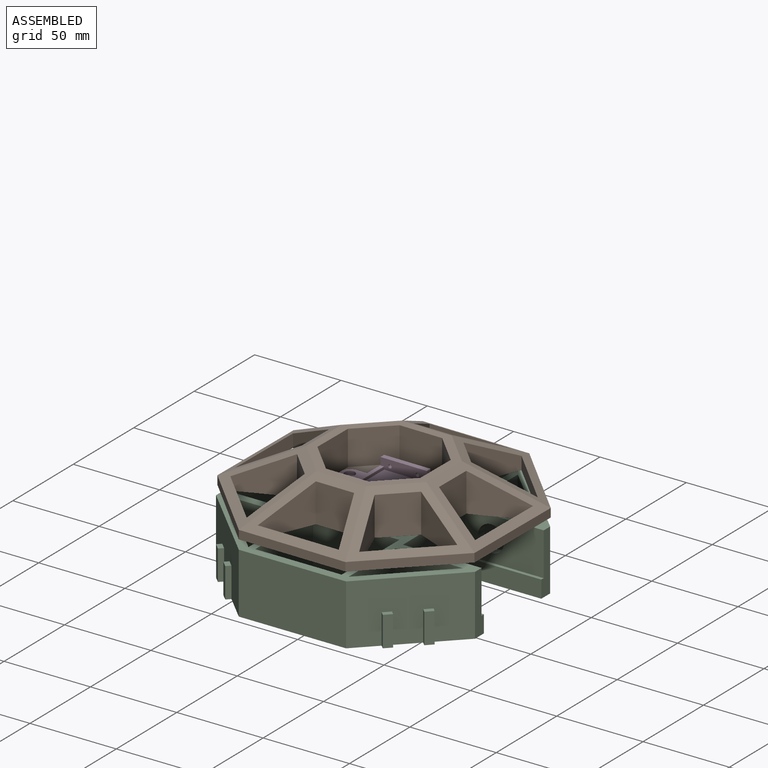
[diagram: assembled view]
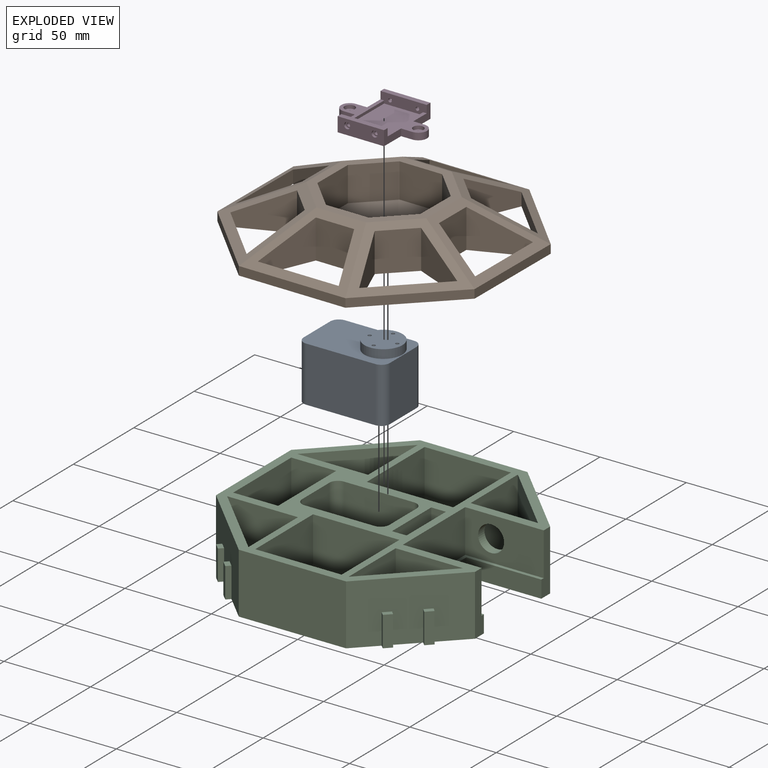
[diagram: exploded view]
GUIDED TOUR — MATED ASSEMBLY (Onshape document 58f457461e77400f81e4b03f, AutoMate assembly 58f457461e77400f81e4b03f_301582b72620d29b9b1326fd_e47ebe4f79f54c8009ae58b3_default)

This assembly has 4 components, labeled P0..P3 below (a component is one placed occurrence of a part; the same part can appear more than once), held together by 6 mates. A mate is a constraint between two components; its type names the relative motion it leaves free:
  CYLINDRICAL — leaves both rotation about and translation along the listed axis free,
  PLANAR — leaves sliding in the plane through the listed point (normal = the listed direction) and rotation about that normal free,
  REVOLUTE — leaves rotation about the listed axis free (a hinge).
Axis/direction vectors are unit vectors and 'through' points are millimeter coordinates, both in the assembly's world frame.

MATES
  1. REVOLUTE "Revolute 1": P1 <-> P0, axis (0.000, 0.000, -1.000) through (-50.34, 0.00, 6.97) mm
  2. PLANAR "Planar 3": P0 <-> P2, direction (0.000, 0.000, -1.000) through (-63.84, 0.00, -30.03) mm
  3. CYLINDRICAL "Cylindrical 1": P1 <-> P3, axis (0.000, 0.000, 1.000) through (-70.07, 0.36, 11.97) mm
  4. PLANAR "Planar 1": P0 <-> P2, direction (1.000, 0.000, 0.000) through (-38.84, 0.00, -14.03) mm
  5. PLANAR "Planar 2": P0 <-> P2, direction (0.000, 1.000, 0.000) through (-63.84, 16.00, -14.03) mm
  6. CYLINDRICAL "Cylindrical 2": P3 <-> P1, axis (0.000, 0.000, -1.000) through (-30.08, -0.04, 11.97) mm

ASSEMBLY ORDER
  1. P2 — the base component [order verified]
  2. P0 [order verified]
  3. P1 [order verified]
  4. P3 [order verified]
Order-tag legend:
  [order verified] — this step's position reverses a verified removal order: the component was checked to insert without passing through the ones already placed.

Of the 4 components, 2 carry the full construction recipe — the FeatureScript program that regenerates the part's solid from scratch; the rest are supplied as boundary geometry only.
Each toured component is shown spotlighted twice — in the assembled view, then in the exploded view, where a leader line traces a displaced component back to its assembled socket (saturated green if recipe-attached, orange if geometry-only; every other component desaturated gray) — followed by its recipe or geometry summary and the mates that hold it.
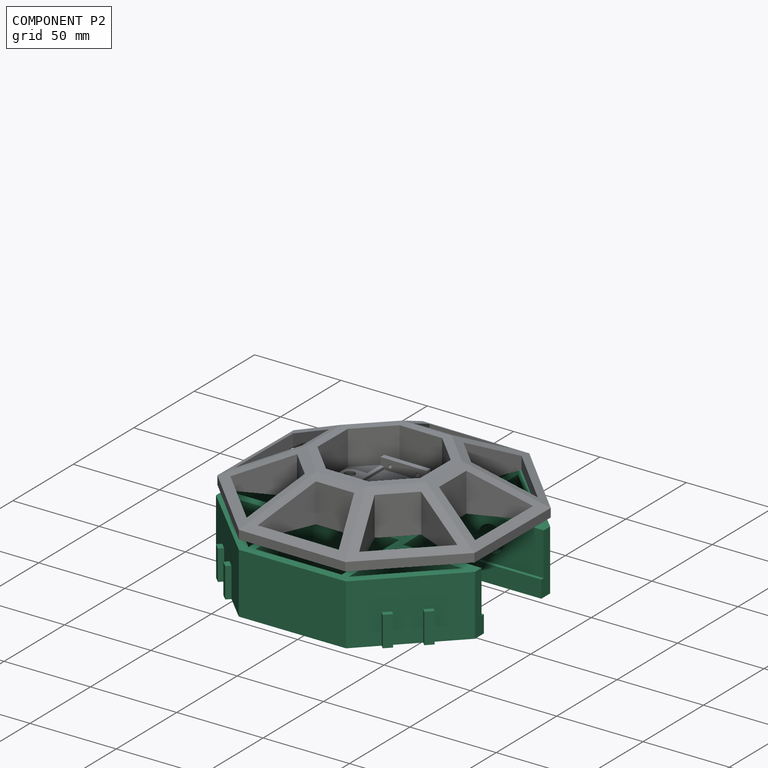
[diagram: component P2 — assembled]
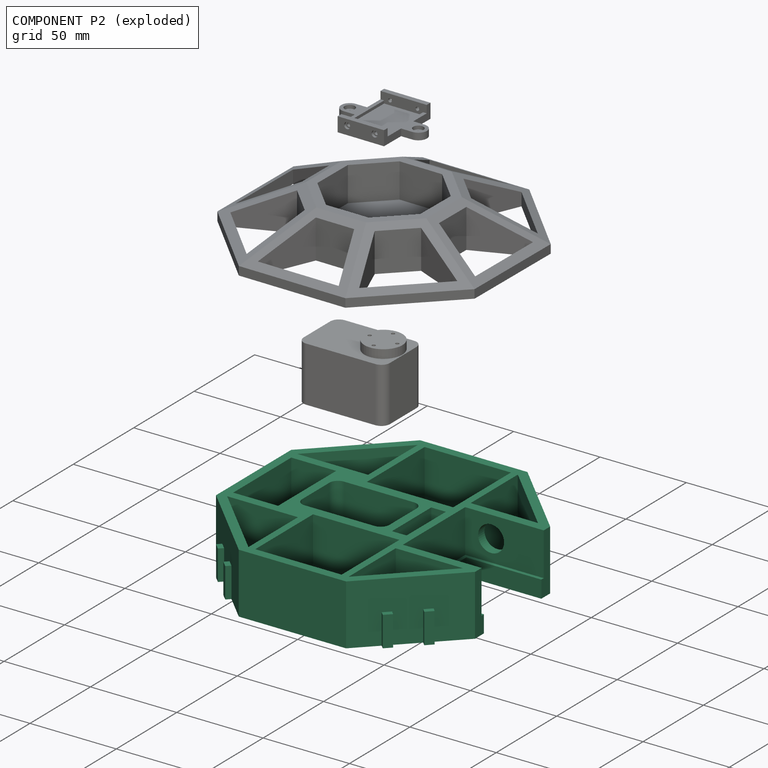
[diagram: component P2 — exploded]
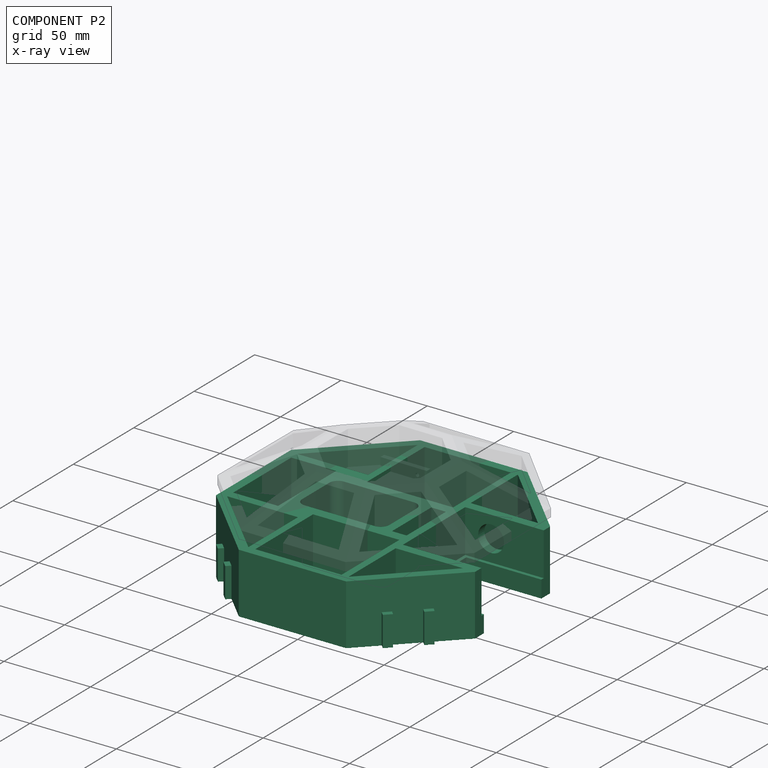
[diagram: component P2 — x-ray view]
COMPONENT P2 — recipe-attached (CADFS 00713573, mesh-verified: the recipe's output STEP matches this component's geometry to below the mesh-comparison resolution (tessellation chordal tolerance ~0.323 mm)).
Held by: PLANAR mate "Planar 3" to P0; PLANAR mate "Planar 1" to P0; PLANAR mate "Planar 2" to P0.
Construction recipe (FeatureScript — the CAD program that rebuilds this solid; sketch coordinates are in the units given by the * unit suffixes, e.g. mm):

FeatureScript 1511;
import(path : "onshape/std/geometry.fs", version : "1511.0");
import(path : "onshape/std/common.fs", version : "1511.0");
const mm = millimeter;
const VERTEX = EntityType.VERTEX;
const EDGE = EntityType.EDGE;
const FACE = EntityType.FACE;
const BODY = EntityType.BODY;
function v(x, y){return vector(x, y);}
function OD(order){return orderDisambiguation(order);}
function OSD(set){return originalSetDisambiguation(set);}
function TD(topology){return topologyDisambiguation(topology);}
function TDD(query){return trueDependencyDisambiguation(query);}
function sQuery(a, b, c) {return sketchEntityQuery(a, b, c);}

annotation { "Feature Type Name" : "Feature", "Feature Type Description" : "" }
export const myFeature = defineFeature(function(context is Context, id is Id, definition is map)
    precondition{}
    {
        {
            var Q0;
            Q0=qCreatedBy(makeId("Top.planeOp"),FACE);
            var sketch = newSketch(context, id + "F0", { "sketchPlane" : qUnion([Q0])});
            skCircle(sketch, "E0.cCircle", {"center": v(0, 0) * mm, "radius": 75 * mm, "construction": true});
            skLineSegment(sketch, "E0.0", {"start": v(75, 31.07) * mm, "end": v(75, -31.07) * mm});
            skLineSegment(sketch, "E0.1", {"start": v(75, -31.07) * mm, "end": v(31.07, -75) * mm});
            skLineSegment(sketch, "E0.2", {"start": v(31.07, -75) * mm, "end": v(-31.07, -75) * mm});
            skLineSegment(sketch, "E0.3", {"start": v(-31.07, -75) * mm, "end": v(-75, -31.07) * mm});
            skLineSegment(sketch, "E0.4", {"start": v(-75, -31.07) * mm, "end": v(-75, 31.07) * mm});
            skLineSegment(sketch, "E0.5", {"start": v(-75, 31.07) * mm, "end": v(-31.07, 75) * mm});
            skLineSegment(sketch, "E0.6", {"start": v(-31.07, 75) * mm, "end": v(31.07, 75) * mm});
            skLineSegment(sketch, "E0.7", {"start": v(31.07, 75) * mm, "end": v(75, 31.07) * mm});
            skPoint(sketch, "E0.0.midPoint", {"position": v(75, 0) * mm});
            skLineSegment(sketch, "E1", {"start": v(0, 0) * mm, "end": v(11.5, 0) * mm, "construction": true});
            skLineSegment(sketch, "E2", {"start": v(11.5, 0) * mm, "end": v(11.5, -16.25) * mm});
            skLineSegment(sketch, "E3", {"start": v(11.5, 0) * mm, "end": v(11.5, 16.25) * mm});
            skLineSegment(sketch, "E4", {"start": v(11.5, 16.25) * mm, "end": v(-39, 16.25) * mm});
            skLineSegment(sketch, "E5", {"start": v(11.5, -16.25) * mm, "end": v(-39, -16.25) * mm});
            skLineSegment(sketch, "E6", {"start": v(-39, 16.25) * mm, "end": v(-39, -16.25) * mm});
            skSolve(sketch);
        }
        {
            var Q0;
            Q0=qSketchRegion(id+"F0",true);
            extrude(context, id + "F1", {"entities" : qUnion([Q0]), "depth" : 35 * mm});
        }
        {
            var Q0;
            Q0=makeQuery(id+"F1.opExtrude","CAP_FACE",FACE,{"disambiguationData":[OSD([sQuery(id+"F0.wireOp",EDGE,"E0.0"),sQuery(id+"F0.wireOp",EDGE,"E0.1"),sQuery(id+"F0.wireOp",EDGE,"E0.2"),sQuery(id+"F0.wireOp",EDGE,"E0.3"),sQuery(id+"F0.wireOp",EDGE,"E0.4"),sQuery(id+"F0.wireOp",EDGE,"E0.5"),sQuery(id+"F0.wireOp",EDGE,"E0.6"),sQuery(id+"F0.wireOp",EDGE,"E0.7"),sQuery(id+"F0.wireOp",EDGE,"E2"),sQuery(id+"F0.wireOp",EDGE,"E3"),sQuery(id+"F0.wireOp",EDGE,"E4"),sQuery(id+"F0.wireOp",EDGE,"E5"),sQuery(id+"F0.wireOp",EDGE,"E6")])],"isStart":true});
            var sketch = newSketch(context, id + "F2", { "sketchPlane" : qUnion([Q0])});
            skLineSegment(sketch, "E7.0", {"start": v(31.07, 75) * mm, "end": v(-31.07, 75) * mm});
            skLineSegment(sketch, "E7.1", {"start": v(-31.07, 75) * mm, "end": v(-75, 31.07) * mm});
            skLineSegment(sketch, "E7.2", {"start": v(-75, 31.07) * mm, "end": v(-75, -31.07) * mm});
            skLineSegment(sketch, "E7.3", {"start": v(-75, -31.07) * mm, "end": v(-31.07, -75) * mm});
            skLineSegment(sketch, "E7.4", {"start": v(-31.07, -75) * mm, "end": v(31.07, -75) * mm});
            skLineSegment(sketch, "E7.5", {"start": v(31.07, -75) * mm, "end": v(75, -31.07) * mm});
            skLineSegment(sketch, "E7.6", {"start": v(75, -31.07) * mm, "end": v(75, 31.07) * mm});
            skLineSegment(sketch, "E7.7", {"start": v(75, 31.07) * mm, "end": v(31.07, 75) * mm});
            skLineSegment(sketch, "E8.0", {"start": v(-29, 70) * mm, "end": v(-70, 29) * mm});
            skLineSegment(sketch, "E8.1", {"start": v(29, 70) * mm, "end": v(-29, 70) * mm, "construction": true});
            skLineSegment(sketch, "E8.2", {"start": v(-70, 29) * mm, "end": v(-70, -29) * mm, "construction": true});
            skLineSegment(sketch, "E8.3", {"start": v(70, 29) * mm, "end": v(68, 31) * mm, "construction": true});
            skLineSegment(sketch, "E8.4", {"start": v(-70, -29) * mm, "end": v(-29, -70) * mm});
            skLineSegment(sketch, "E8.5", {"start": v(-29, -70) * mm, "end": v(29, -70) * mm, "construction": true});
            skLineSegment(sketch, "E8.6", {"start": v(29, -70) * mm, "end": v(68, -31) * mm});
            skLineSegment(sketch, "E8.7", {"start": v(70, -29) * mm, "end": v(70, 29) * mm, "construction": true});
            skLineSegment(sketch, "E9.0", {"start": v(11.5, 16.25) * mm, "end": v(-39, 16.25) * mm, "construction": true});
            skLineSegment(sketch, "E9.1", {"start": v(-39, -16.25) * mm, "end": v(-39, 16.25) * mm, "construction": true});
            skLineSegment(sketch, "E9.2", {"start": v(11.5, -16.25) * mm, "end": v(-39, -16.25) * mm, "construction": true});
            skLineSegment(sketch, "E9.3", {"start": v(11.5, 16.25) * mm, "end": v(11.5, -16.25) * mm, "construction": true});
            skLineSegment(sketch, "E10", {"start": v(-70, 29) * mm, "end": v(-29, 29) * mm});
            skLineSegment(sketch, "E11", {"start": v(-29, 70) * mm, "end": v(-29, 29) * mm});
            skLineSegment(sketch, "E12", {"start": v(29, 70) * mm, "end": v(29, 31) * mm});
            skLineSegment(sketch, "E13", {"start": v(29, 29) * mm, "end": v(70, 29) * mm, "construction": true});
            skLineSegment(sketch, "E14", {"start": v(70, -29) * mm, "end": v(29, -29) * mm, "construction": true});
            skLineSegment(sketch, "E15", {"start": v(29, -29) * mm, "end": v(29, -31) * mm, "construction": true});
            skLineSegment(sketch, "E16", {"start": v(-29, -70) * mm, "end": v(-29, -29) * mm});
            skLineSegment(sketch, "E17", {"start": v(-29, -29) * mm, "end": v(-70, -29) * mm});
            skLineSegment(sketch, "E18", {"start": v(-25, 70) * mm, "end": v(25, 70) * mm});
            skLineSegment(sketch, "E19", {"start": v(0, 0) * mm, "end": v(27.89, 0) * mm, "construction": true});
            skPoint(sketch, "E19.endSnap0", {"position": v(11.5, 0) * mm});
            skLineSegment(sketch, "E20.MirrorCS", {"start": v(-25, -70) * mm, "end": v(25, -70) * mm});
            skLineSegment(sketch, "E21", {"start": v(-44, 24) * mm, "end": v(-44, -24) * mm});
            skLineSegment(sketch, "E22.0", {"start": v(68, -31) * mm, "end": v(29, -31) * mm});
            skLineSegment(sketch, "E23", {"start": v(29, -31) * mm, "end": v(29, -70) * mm});
            skLineSegment(sketch, "E24", {"start": v(68, -31) * mm, "end": v(70, -29) * mm, "construction": true});
            skLineSegment(sketch, "E25.0", {"start": v(29, 31) * mm, "end": v(68, 31) * mm});
            skLineSegment(sketch, "E26", {"start": v(29, 31) * mm, "end": v(29, 29) * mm, "construction": true});
            skLineSegment(sketch, "E27", {"start": v(68, 31) * mm, "end": v(29, 70) * mm});
            skLineSegment(sketch, "E28", {"start": v(-44, 24) * mm, "end": v(-70, 24) * mm});
            skLineSegment(sketch, "E29", {"start": v(-44, -24) * mm, "end": v(-70, -24) * mm});
            skLineSegment(sketch, "E30", {"start": v(-70, -24) * mm, "end": v(-70, 24) * mm});
            skLineSegment(sketch, "E31", {"start": v(-25, 22.25) * mm, "end": v(24.98, 22.25) * mm});
            skLineSegment(sketch, "E32", {"start": v(-25, -22.25) * mm, "end": v(25, -22.25) * mm});
            skLineSegment(sketch, "E33", {"start": v(-25, -22.25) * mm, "end": v(-25, -70) * mm});
            skLineSegment(sketch, "E34", {"start": v(25, -22.25) * mm, "end": v(25, -70) * mm});
            skLineSegment(sketch, "E35", {"start": v(24.98, 22.25) * mm, "end": v(25, 70) * mm});
            skLineSegment(sketch, "E36", {"start": v(-25, 22.25) * mm, "end": v(-25, 70) * mm});
            skLineSegment(sketch, "E37", {"start": v(16.5, 16.25) * mm, "end": v(16.5, -16.25) * mm});
            skLineSegment(sketch, "E38", {"start": v(16.5, 16.25) * mm, "end": v(24.98, 16.25) * mm});
            skLineSegment(sketch, "E39", {"start": v(24.98, 16.25) * mm, "end": v(24.98, -16.25) * mm});
            skLineSegment(sketch, "E40", {"start": v(24.98, -16.25) * mm, "end": v(16.5, -16.25) * mm});
            skSolve(sketch);
        }
        {
            var Q0;
            Q0=makeQuery(id+"F2.imprint","IMPRINT",FACE,{"disambiguationData":[TD([[makeQuery(id+"F2.imprint","IMPRINT",EDGE,{"derivedFrom":sQuery(id+"F2.wireOp",EDGE,"E8.0")}),1.0]])]});
            var Q1;
            Q1=makeQuery(id+"F2.imprint","IMPRINT",FACE,{"disambiguationData":[TD([[makeQuery(id+"F2.imprint","IMPRINT",EDGE,{"derivedFrom":sQuery(id+"F2.wireOp",EDGE,"E8.3")}),1.0]])]});
            var Q2;
            Q2=makeQuery(id+"F2.imprint","IMPRINT",FACE,{"disambiguationData":[TD([[makeQuery(id+"F2.imprint","IMPRINT",EDGE,{"derivedFrom":sQuery(id+"F2.wireOp",EDGE,"E8.4")}),1.0]])]});
            var Q3;
            Q3=makeQuery(id+"F2.imprint","IMPRINT",FACE,{"disambiguationData":[TD([[makeQuery(id+"F2.imprint","IMPRINT",EDGE,{"derivedFrom":sQuery(id+"F2.wireOp",EDGE,"8fvEKYef-Aid4-GxJZ-9eho-uKyJXPdf4iPF")}),1.0]])]});
            var Q4;
            Q4=makeQuery(id+"F2.imprint","IMPRINT",FACE,{"disambiguationData":[TD([[makeQuery(id+"F2.imprint","IMPRINT",EDGE,{"derivedFrom":sQuery(id+"F2.wireOp",EDGE,"9003354b-389c-4ee3-9b45-5ecd4443ff8f0.MirrorCS")}),-1.0]])]});
            var Q5;
            Q5=makeQuery(id+"F2.imprint","IMPRINT",FACE,{"disambiguationData":[TD([[makeQuery(id+"F2.imprint","IMPRINT",EDGE,{"derivedFrom":sQuery(id+"F2.wireOp",EDGE,"X22rCwxT-IPlS-Nedg-AixG-TADrHZbppUWM")}),-1.0]])]});
            var Q6;
            Q6=makeQuery(id+"F2.imprint","IMPRINT",FACE,{"disambiguationData":[TD([[makeQuery(id+"F2.imprint","IMPRINT",EDGE,{"derivedFrom":sQuery(id+"F2.wireOp",EDGE,"E12")}),1.0]])]});
            var Q7;
            Q7=makeQuery(id+"F2.imprint","IMPRINT",FACE,{"disambiguationData":[TD([[makeQuery(id+"F2.imprint","IMPRINT",EDGE,{"derivedFrom":sQuery(id+"F2.wireOp",EDGE,"E8.6")}),1.0]])]});
            var Q8;
            Q8=makeQuery(id+"F2.imprint","IMPRINT",FACE,{"disambiguationData":[TD([[makeQuery(id+"F2.imprint","IMPRINT",EDGE,{"derivedFrom":sQuery(id+"F2.wireOp",EDGE,"E21")}),-1.0]])]});
            var Q9;
            Q9=makeQuery(id+"F2.imprint","IMPRINT",FACE,{"disambiguationData":[TD([[makeQuery(id+"F2.imprint","IMPRINT",EDGE,{"derivedFrom":sQuery(id+"F2.wireOp",EDGE,"E18")}),-1.0]])]});
            var Q10;
            Q10=makeQuery(id+"F2.imprint","IMPRINT",FACE,{"disambiguationData":[TD([[makeQuery(id+"F2.imprint","IMPRINT",EDGE,{"derivedFrom":sQuery(id+"F2.wireOp",EDGE,"E20.MirrorCS")}),1.0]])]});
            var Q11;
            Q11=makeQuery(id+"F2.imprint","IMPRINT",FACE,{"disambiguationData":[TD([[makeQuery(id+"F2.imprint","IMPRINT",EDGE,{"derivedFrom":sQuery(id+"F2.wireOp",EDGE,"E37")}),1.0]])]});
            extrude(context, id + "F3", {"entities" : qUnion([Q0, Q1, Q2, Q3, Q4, Q5, Q6, Q7, Q8, Q9, Q10, Q11]), "operationType" : NewBodyOperationType.REMOVE, "oppositeDirection" : true, "depth" : 36.9 * mm});
        }
        {
            var Q0;
            Q0=makeQuery(id+"F1.opExtrude","CAP_FACE",FACE,{"disambiguationData":[OSD([sQuery(id+"F0.wireOp",EDGE,"E0.0"),sQuery(id+"F0.wireOp",EDGE,"E0.1"),sQuery(id+"F0.wireOp",EDGE,"E0.2"),sQuery(id+"F0.wireOp",EDGE,"E0.3"),sQuery(id+"F0.wireOp",EDGE,"E0.4"),sQuery(id+"F0.wireOp",EDGE,"E0.5"),sQuery(id+"F0.wireOp",EDGE,"E0.6"),sQuery(id+"F0.wireOp",EDGE,"E0.7"),sQuery(id+"F0.wireOp",EDGE,"E2"),sQuery(id+"F0.wireOp",EDGE,"E3"),sQuery(id+"F0.wireOp",EDGE,"E4"),sQuery(id+"F0.wireOp",EDGE,"E5"),sQuery(id+"F0.wireOp",EDGE,"E6")])],"isStart":true});
            var sketch = newSketch(context, id + "F4", { "sketchPlane" : qUnion([Q0])});
            skLineSegment(sketch, "E41.0", {"start": v(-39, -16.25) * mm, "end": v(-39, 16.25) * mm});
            skLineSegment(sketch, "E41.1", {"start": v(11.5, 16.25) * mm, "end": v(-39, 16.25) * mm});
            skLineSegment(sketch, "E41.2", {"start": v(11.5, -16.25) * mm, "end": v(-39, -16.25) * mm});
            skLineSegment(sketch, "E41.3", {"start": v(11.5, 16.25) * mm, "end": v(11.5, -16.25) * mm});
            skLineSegment(sketch, "E42.0", {"start": v(9, -11.25) * mm, "end": v(-34, -11.25) * mm});
            skLineSegment(sketch, "E42.1", {"start": v(-34, -11.25) * mm, "end": v(-34, 11.25) * mm});
            skLineSegment(sketch, "E42.2", {"start": v(9, 11.25) * mm, "end": v(-34, 11.25) * mm});
            skLineSegment(sketch, "E43", {"start": v(-39, 13.75) * mm, "end": v(-30.5, 13.75) * mm, "construction": true});
            skLineSegment(sketch, "E44", {"start": v(-30.5, 13.75) * mm, "end": v(-22.5, 13.75) * mm, "construction": true});
            skLineSegment(sketch, "E45", {"start": v(-22.5, 13.75) * mm, "end": v(-14.5, 13.75) * mm, "construction": true});
            skLineSegment(sketch, "E46", {"start": v(-14.5, 13.75) * mm, "end": v(-6.5, 13.75) * mm, "construction": true});
            skCircle(sketch, "E47", {"center": v(-30.5, 13.75) * mm, "radius": 1 * mm});
            skCircle(sketch, "E48", {"center": v(-22.5, 13.75) * mm, "radius": 1 * mm});
            skCircle(sketch, "E49", {"center": v(-14.5, 13.75) * mm, "radius": 1 * mm});
            skCircle(sketch, "E50", {"center": v(-6.5, 13.75) * mm, "radius": 1 * mm});
            skLineSegment(sketch, "E51", {"start": v(-39, 0) * mm, "end": v(-36, 0) * mm, "construction": true});
            skPoint(sketch, "E51.endSnap0", {"position": v(-39, 0) * mm});
            skLineSegment(sketch, "E52", {"start": v(-36, 0) * mm, "end": v(-36, 8) * mm, "construction": true});
            skLineSegment(sketch, "E53", {"start": v(-36, 0) * mm, "end": v(-36, -8) * mm, "construction": true});
            skLineSegment(sketch, "E54.MirrorCS", {"start": v(-39, -13.75) * mm, "end": v(-30.5, -13.75) * mm, "construction": true});
            skLineSegment(sketch, "E55.MirrorCS", {"start": v(-14.5, -13.75) * mm, "end": v(-6.5, -13.75) * mm, "construction": true});
            skCircle(sketch, "E56.MirrorC", {"center": v(-22.5, -13.75) * mm, "radius": 1 * mm});
            skCircle(sketch, "E57.MirrorC", {"center": v(-6.5, -13.75) * mm, "radius": 1 * mm});
            skCircle(sketch, "E58.MirrorC", {"center": v(-30.5, -13.75) * mm, "radius": 1 * mm});
            skLineSegment(sketch, "E59.MirrorCS", {"start": v(-30.5, -13.75) * mm, "end": v(-22.5, -13.75) * mm, "construction": true});
            skLineSegment(sketch, "E60.MirrorCS", {"start": v(-22.5, -13.75) * mm, "end": v(-14.5, -13.75) * mm, "construction": true});
            skCircle(sketch, "E61.MirrorC", {"center": v(-14.5, -13.75) * mm, "radius": 1 * mm});
            skCircle(sketch, "E62", {"center": v(-36, 8) * mm, "radius": 1 * mm});
            skCircle(sketch, "E63", {"center": v(-36, -8) * mm, "radius": 1 * mm});
            skLineSegment(sketch, "E64.0", {"start": v(9, 11.25) * mm, "end": v(9, -11.25) * mm});
            skSolve(sketch);
        }
        {
            var Q0;
            Q0=makeQuery(id+"F4.imprint","IMPRINT",FACE,{"disambiguationData":[TD([[makeQuery(id+"F4.imprint","IMPRINT",EDGE,{"derivedFrom":sQuery(id+"F4.wireOp",EDGE,"E41.0")}),-1.0]])]});
            extrude(context, id + "F5", {"entities" : qUnion([Q0]), "operationType" : NewBodyOperationType.ADD, "oppositeDirection" : true, "depth" : 3 * mm});
        }
        {
            var Q0;
            Q0=makeQuery(id+"F1.opExtrude","SWEPT_EDGE",EDGE,{"disambiguationData":[OSD([sQuery(id+"F0.wireOp",EDGE,"E5"),sQuery(id+"F0.wireOp",EDGE,"E6")])]});
            var Q1;
            Q1=makeQuery(id+"F1.opExtrude","SWEPT_EDGE",EDGE,{"disambiguationData":[OSD([sQuery(id+"F0.wireOp",EDGE,"E4"),sQuery(id+"F0.wireOp",EDGE,"E6")])]});
            var Q2;
            Q2=makeQuery(id+"F1.opExtrude","SWEPT_EDGE",EDGE,{"disambiguationData":[OSD([sQuery(id+"F0.wireOp",EDGE,"E3"),sQuery(id+"F0.wireOp",EDGE,"E4")])]});
            var Q3;
            Q3=makeQuery(id+"F1.opExtrude","SWEPT_EDGE",EDGE,{"disambiguationData":[OSD([sQuery(id+"F0.wireOp",EDGE,"E2"),sQuery(id+"F0.wireOp",EDGE,"E5")])]});
            fillet(context, id + "F6", {"entities" : qUnion([Q0, Q1, Q2, Q3]), "radius" : 5 * mm, "tangentPropagation" : true, "allowEdgeOverflow" : false});
        }
        {
            var Q0;
            Q0=makeQuery(id+"F1.opExtrude","CAP_FACE",FACE,{"disambiguationData":[OSD([sQuery(id+"F0.wireOp",EDGE,"E0.0"),sQuery(id+"F0.wireOp",EDGE,"E0.1"),sQuery(id+"F0.wireOp",EDGE,"E0.2"),sQuery(id+"F0.wireOp",EDGE,"E0.3"),sQuery(id+"F0.wireOp",EDGE,"E0.4"),sQuery(id+"F0.wireOp",EDGE,"E0.5"),sQuery(id+"F0.wireOp",EDGE,"E0.6"),sQuery(id+"F0.wireOp",EDGE,"E0.7"),sQuery(id+"F0.wireOp",EDGE,"E2"),sQuery(id+"F0.wireOp",EDGE,"E3"),sQuery(id+"F0.wireOp",EDGE,"E4"),sQuery(id+"F0.wireOp",EDGE,"E5"),sQuery(id+"F0.wireOp",EDGE,"E6")])],"isStart":false});
            var sketch = newSketch(context, id + "F7", { "sketchPlane" : qUnion([Q0])});
            skLineSegment(sketch, "E65.bottom", {"start": v(75, -25.75) * mm, "end": v(29.5, -25.75) * mm});
            skLineSegment(sketch, "E65.top", {"start": v(75, 25.75) * mm, "end": v(29.5, 25.75) * mm});
            skLineSegment(sketch, "E65.right", {"start": v(29.5, -25.75) * mm, "end": v(29.5, 25.75) * mm});
            skPoint(sketch, "E65.middle", {"position": v(52.25, 0) * mm});
            skPoint(sketch, "E66", {"position": v(75, 0) * mm});
            skLineSegment(sketch, "E67", {"start": v(75, 0) * mm, "end": v(52.25, 0) * mm, "construction": true});
            skSolve(sketch);
        }
        {
            var Q0;
            {var subQ0=sQuery(id+"F7.wireOp",EDGE,"E65.bottom");Q0=makeQuery(id+"F7.imprint","IMPRINT",FACE,{"disambiguationData":[TD([[makeQuery(id+"F7.imprint","IMPRINT",EDGE,{"derivedFrom":subQ0}),-1.0]])]});}
            extrude(context, id + "F8", {"entities" : qUnion([Q0]), "operationType" : NewBodyOperationType.REMOVE, "oppositeDirection" : true, "depth" : 30 * mm});
        }
        {
            var Q0;
            Q0=makeQuery(id+"F8.boolean.opBoolean","COPY",FACE,{"derivedFrom":makeQuery(id+"F8.opExtrude","CAP_FACE",FACE,{"disambiguationData":[OSD([sQuery(id+"F0.wireOp",EDGE,"E0.0"),sQuery(id+"F7.wireOp",EDGE,"E65.bottom"),sQuery(id+"F7.wireOp",EDGE,"E65.top"),sQuery(id+"F7.wireOp",EDGE,"E65.right")])],"isStart":false})});
            var sketch = newSketch(context, id + "F9", { "sketchPlane" : qUnion([Q0])});
            skLineSegment(sketch, "E68.0", {"start": v(75, 25.75) * mm, "end": v(29.5, 25.75) * mm});
            skLineSegment(sketch, "E68.1", {"start": v(29.5, -25.75) * mm, "end": v(29.5, 25.75) * mm});
            skLineSegment(sketch, "E68.2", {"start": v(75, -25.75) * mm, "end": v(29.5, -25.75) * mm});
            skLineSegment(sketch, "E69.0", {"start": v(75, -23.75) * mm, "end": v(31.5, -23.75) * mm});
            skLineSegment(sketch, "E69.1", {"start": v(31.5, -23.75) * mm, "end": v(31.5, 23.75) * mm});
            skLineSegment(sketch, "E69.2", {"start": v(75, 23.75) * mm, "end": v(31.5, 23.75) * mm});
            skLineSegment(sketch, "E70", {"start": v(75, 23.75) * mm, "end": v(75, 25.75) * mm});
            skLineSegment(sketch, "E71", {"start": v(75, -23.75) * mm, "end": v(75, -25.75) * mm});
            skSolve(sketch);
        }
        {
            var Q0;
            Q0=makeQuery(id+"F9.imprint","IMPRINT",FACE,{"disambiguationData":[TD([[makeQuery(id+"F9.imprint","IMPRINT",EDGE,{"derivedFrom":sQuery(id+"F9.wireOp",EDGE,"E68.0")}),1.0]])]});
            extrude(context, id + "F10", {"entities" : qUnion([Q0]), "operationType" : NewBodyOperationType.ADD, "depth" : 5 * mm});
        }
        {
            var Q0;
            Q0=makeQuery(id+"F8.boolean.opBoolean","COPY",FACE,{"derivedFrom":makeQuery(id+"F8.opExtrude","SWEPT_FACE",FACE,{"disambiguationData":[OSD([sQuery(id+"F7.wireOp",EDGE,"E65.bottom")])]})});
            var sketch = newSketch(context, id + "F11", { "sketchPlane" : qUnion([Q0])});
            skLineSegment(sketch, "E72.0", {"start": v(-68, 35) * mm, "end": v(-68, 0) * mm, "construction": true});
            skLineSegment(sketch, "E73", {"start": v(-55, 10) * mm, "end": v(-55, 25) * mm});
            skLineSegment(sketch, "E74", {"start": v(-55, 25) * mm, "end": v(-35, 25) * mm});
            skLineSegment(sketch, "E75", {"start": v(-35, 25) * mm, "end": v(-35, 10) * mm});
            skLineSegment(sketch, "E76", {"start": v(-35, 10) * mm, "end": v(-55, 10) * mm});
            skSolve(sketch);
        }
        {
            var Q0;
            Q0=makeQuery(id+"F11.imprint","IMPRINT",FACE,{"disambiguationData":[TD([[makeQuery(id+"F11.imprint","IMPRINT",EDGE,{"derivedFrom":sQuery(id+"F11.wireOp",EDGE,"E73")}),-1.0]])]});
            extrude(context, id + "F12", {"entities" : qUnion([Q0]), "operationType" : NewBodyOperationType.REMOVE, "oppositeDirection" : true, "depth" : 11.4 * mm});
        }
        {
            var Q0;
            Q0=makeQuery(id+"F12.boolean.opBoolean","COPY",EDGE,{"derivedFrom":makeQuery(id+"F12.opExtrude","SWEPT_EDGE",EDGE,{"disambiguationData":[OSD([sQuery(id+"F11.wireOp",EDGE,"E73"),sQuery(id+"F11.wireOp",EDGE,"E74")])]})});
            var Q1;
            Q1=makeQuery(id+"F12.boolean.opBoolean","COPY",EDGE,{"derivedFrom":makeQuery(id+"F12.opExtrude","SWEPT_EDGE",EDGE,{"disambiguationData":[OSD([sQuery(id+"F11.wireOp",EDGE,"E74"),sQuery(id+"F11.wireOp",EDGE,"E75")])]})});
            fillet(context, id + "F13", {"entities" : qUnion([Q0, Q1]), "radius" : 10 * mm, "tangentPropagation" : true, "allowEdgeOverflow" : false});
        }
        {
            var Q0;
            Q0=makeQuery(id+"F12.boolean.opBoolean","MERGE",FACE,{"derivedFrom":[makeQuery(id+"F10.opExtrude","CAP_FACE",FACE,{"disambiguationData":[OSD([sQuery(id+"F9.wireOp",EDGE,"E68.0"),sQuery(id+"F9.wireOp",EDGE,"E68.1"),sQuery(id+"F9.wireOp",EDGE,"E68.2"),sQuery(id+"F9.wireOp",EDGE,"E69.0"),sQuery(id+"F9.wireOp",EDGE,"E69.1"),sQuery(id+"F9.wireOp",EDGE,"E69.2"),sQuery(id+"F9.wireOp",EDGE,"E70"),sQuery(id+"F9.wireOp",EDGE,"E71")])],"isStart":false}),makeQuery(id+"F12.opExtrude","SWEPT_FACE",FACE,{"disambiguationData":[OSD([sQuery(id+"F11.wireOp",EDGE,"E76")])]})]});
            var sketch = newSketch(context, id + "F14", { "sketchPlane" : qUnion([Q0])});
            skLineSegment(sketch, "E77", {"start": v(35, -31) * mm, "end": v(35, -25.75) * mm});
            skLineSegment(sketch, "E78", {"start": v(35, -25.75) * mm, "end": v(55, -25.75) * mm});
            skLineSegment(sketch, "E79", {"start": v(55, -25.75) * mm, "end": v(55, -31) * mm});
            skLineSegment(sketch, "E80", {"start": v(55, -31) * mm, "end": v(35, -31) * mm});
            skSolve(sketch);
        }
        {
            var Q0;
            Q0=makeQuery(id+"F14.imprint","IMPRINT",FACE,{"disambiguationData":[TD([[makeQuery(id+"F14.imprint","IMPRINT",EDGE,{"derivedFrom":sQuery(id+"F14.wireOp",EDGE,"E77")}),-1.0]])]});
            extrude(context, id + "F15", {"entities" : qUnion([Q0]), "operationType" : NewBodyOperationType.REMOVE, "oppositeDirection" : true, "depth" : 25 * mm});
        }
        {
            var Q0;
            Q0=makeQuery(id+"F8.boolean.opBoolean","COPY",FACE,{"derivedFrom":makeQuery(id+"F8.opExtrude","SWEPT_FACE",FACE,{"disambiguationData":[OSD([sQuery(id+"F7.wireOp",EDGE,"E65.top")])]})});
            var sketch = newSketch(context, id + "F16", { "sketchPlane" : qUnion([Q0])});
            skLineSegment(sketch, "E81", {"start": v(29.5, 22.5) * mm, "end": v(44.5, 22.5) * mm, "construction": true});
            skCircle(sketch, "E82", {"center": v(44.5, 22.5) * mm, "radius": 7.5 * mm});
            skSolve(sketch);
        }
        {
            var Q0;
            Q0=makeQuery(id+"F16.imprint","IMPRINT",FACE,{"disambiguationData":[TD([[makeQuery(id+"F16.imprint","IMPRINT",EDGE,{"derivedFrom":sQuery(id+"F16.wireOp",EDGE,"E82")}),1.0]])]});
            extrude(context, id + "F17", {"entities" : qUnion([Q0]), "operationType" : NewBodyOperationType.REMOVE, "oppositeDirection" : true, "depth" : 7.7 * mm});
        }
        {
            var Q0;
            Q0=makeQuery(id+"F8.boolean.opBoolean","COPY",FACE,{"derivedFrom":makeQuery(id+"F8.opExtrude","CAP_FACE",FACE,{"disambiguationData":[OSD([sQuery(id+"F0.wireOp",EDGE,"E0.0"),sQuery(id+"F7.wireOp",EDGE,"E65.bottom"),sQuery(id+"F7.wireOp",EDGE,"E65.top"),sQuery(id+"F7.wireOp",EDGE,"E65.right")])],"isStart":false})});
            extrude(context, id + "F18", {"entities" : qUnion([Q0]), "operationType" : NewBodyOperationType.REMOVE, "oppositeDirection" : true, "depth" : 25 * mm});
        }
        {
            var Q0;
            Q0=qCreatedBy(makeId("Top.planeOp"),FACE);
            var sketch = newSketch(context, id + "F19", { "sketchPlane" : qUnion([Q0])});
            skPoint(sketch, "E83.0", {"position": v(48.5, -50.5) * mm});
            skLineSegment(sketch, "E84.0", {"start": v(68, -31) * mm, "end": v(29, -70) * mm, "construction": true});
            skLineSegment(sketch, "E85", {"start": v(43.2, -55.8) * mm, "end": v(41.07, -53.68) * mm});
            skLineSegment(sketch, "E86", {"start": v(52.03, -46.96) * mm, "end": v(49.91, -44.84) * mm});
            skLineSegment(sketch, "E87", {"start": v(41.07, -53.68) * mm, "end": v(37.54, -57.21) * mm});
            skLineSegment(sketch, "E88", {"start": v(37.54, -57.21) * mm, "end": v(39.66, -59.34) * mm});
            skLineSegment(sketch, "E89", {"start": v(49.91, -44.84) * mm, "end": v(55.21, -39.54) * mm});
            skLineSegment(sketch, "E90", {"start": v(55.21, -39.54) * mm, "end": v(57.34, -41.66) * mm});
            skLineSegment(sketch, "E91", {"start": v(48.5, -50.5) * mm, "end": v(52.03, -54.03) * mm, "construction": true});
            skLineSegment(sketch, "E92.0", {"start": v(75, -31.07) * mm, "end": v(31.07, -75) * mm, "construction": true});
            skLineSegment(sketch, "E93", {"start": v(43.2, -55.8) * mm, "end": v(39.66, -59.34) * mm});
            skLineSegment(sketch, "E94", {"start": v(52.03, -46.96) * mm, "end": v(57.34, -41.66) * mm});
            skLineSegment(sketch, "E95", {"start": v(46.73, -59.34) * mm, "end": v(48.85, -61.46) * mm});
            skLineSegment(sketch, "E96", {"start": v(48.85, -61.46) * mm, "end": v(45.32, -65) * mm});
            skLineSegment(sketch, "E97", {"start": v(45.32, -65) * mm, "end": v(43.2, -62.87) * mm});
            skLineSegment(sketch, "E98", {"start": v(43.2, -62.87) * mm, "end": v(46.73, -59.34) * mm});
            skLineSegment(sketch, "E99", {"start": v(57.34, -48.73) * mm, "end": v(59.46, -50.85) * mm});
            skLineSegment(sketch, "E100", {"start": v(59.46, -50.85) * mm, "end": v(63, -47.32) * mm});
            skLineSegment(sketch, "E101", {"start": v(63, -47.32) * mm, "end": v(60.87, -45.2) * mm});
            skLineSegment(sketch, "E102", {"start": v(60.87, -45.2) * mm, "end": v(57.34, -48.73) * mm});
            skLineSegment(sketch, "E103.1.0", {"start": v(50.85, 59.46) * mm, "end": v(47.32, 63) * mm});
            skLineSegment(sketch, "E103.1.1", {"start": v(48.73, 57.34) * mm, "end": v(50.85, 59.46) * mm});
            skLineSegment(sketch, "E103.1.2", {"start": v(45.2, 60.87) * mm, "end": v(48.73, 57.34) * mm});
            skLineSegment(sketch, "E103.1.3", {"start": v(47.32, 63) * mm, "end": v(45.2, 60.87) * mm});
            skLineSegment(sketch, "E103.1.4", {"start": v(62.87, 43.2) * mm, "end": v(59.34, 46.73) * mm});
            skLineSegment(sketch, "E103.1.5", {"start": v(59.34, 46.73) * mm, "end": v(61.46, 48.85) * mm});
            skLineSegment(sketch, "E103.1.6", {"start": v(61.46, 48.85) * mm, "end": v(65, 45.32) * mm});
            skLineSegment(sketch, "E103.1.7", {"start": v(65, 45.32) * mm, "end": v(62.87, 43.2) * mm});
            skLineSegment(sketch, "E103.1.8", {"start": v(55.8, 43.2) * mm, "end": v(53.68, 41.07) * mm});
            skLineSegment(sketch, "E103.1.9", {"start": v(53.68, 41.07) * mm, "end": v(57.21, 37.54) * mm});
            skLineSegment(sketch, "E103.1.10", {"start": v(57.21, 37.54) * mm, "end": v(59.34, 39.66) * mm});
            skLineSegment(sketch, "E103.1.11", {"start": v(55.8, 43.2) * mm, "end": v(59.34, 39.66) * mm});
            skLineSegment(sketch, "E103.1.12", {"start": v(46.96, 52.03) * mm, "end": v(44.84, 49.91) * mm});
            skLineSegment(sketch, "E103.1.13", {"start": v(44.84, 49.91) * mm, "end": v(39.54, 55.21) * mm});
            skLineSegment(sketch, "E103.1.14", {"start": v(46.96, 52.03) * mm, "end": v(41.66, 57.34) * mm});
            skLineSegment(sketch, "E103.1.15", {"start": v(39.54, 55.21) * mm, "end": v(41.66, 57.34) * mm});
            skLineSegment(sketch, "E103.2.0", {"start": v(-59.46, 50.85) * mm, "end": v(-63, 47.32) * mm});
            skLineSegment(sketch, "E103.2.1", {"start": v(-57.34, 48.73) * mm, "end": v(-59.46, 50.85) * mm});
            skLineSegment(sketch, "E103.2.2", {"start": v(-60.87, 45.2) * mm, "end": v(-57.34, 48.73) * mm});
            skLineSegment(sketch, "E103.2.3", {"start": v(-63, 47.32) * mm, "end": v(-60.87, 45.2) * mm});
            skLineSegment(sketch, "E103.2.4", {"start": v(-43.2, 62.87) * mm, "end": v(-46.73, 59.34) * mm});
            skLineSegment(sketch, "E103.2.5", {"start": v(-46.73, 59.34) * mm, "end": v(-48.85, 61.46) * mm});
            skLineSegment(sketch, "E103.2.6", {"start": v(-48.85, 61.46) * mm, "end": v(-45.32, 65) * mm});
            skLineSegment(sketch, "E103.2.7", {"start": v(-45.32, 65) * mm, "end": v(-43.2, 62.87) * mm});
            skLineSegment(sketch, "E103.2.8", {"start": v(-43.2, 55.8) * mm, "end": v(-41.07, 53.68) * mm});
            skLineSegment(sketch, "E103.2.9", {"start": v(-41.07, 53.68) * mm, "end": v(-37.54, 57.21) * mm});
            skLineSegment(sketch, "E103.2.10", {"start": v(-37.54, 57.21) * mm, "end": v(-39.66, 59.34) * mm});
            skLineSegment(sketch, "E103.2.11", {"start": v(-43.2, 55.8) * mm, "end": v(-39.66, 59.34) * mm});
            skLineSegment(sketch, "E103.2.12", {"start": v(-52.03, 46.96) * mm, "end": v(-49.91, 44.84) * mm});
            skLineSegment(sketch, "E103.2.13", {"start": v(-49.91, 44.84) * mm, "end": v(-55.21, 39.54) * mm});
            skLineSegment(sketch, "E103.2.14", {"start": v(-52.03, 46.96) * mm, "end": v(-57.34, 41.66) * mm});
            skLineSegment(sketch, "E103.2.15", {"start": v(-55.21, 39.54) * mm, "end": v(-57.34, 41.66) * mm});
            skLineSegment(sketch, "E103.3.0", {"start": v(-50.85, -59.46) * mm, "end": v(-47.32, -63) * mm});
            skLineSegment(sketch, "E103.3.1", {"start": v(-48.73, -57.34) * mm, "end": v(-50.85, -59.46) * mm});
            skLineSegment(sketch, "E103.3.2", {"start": v(-45.2, -60.87) * mm, "end": v(-48.73, -57.34) * mm});
            skLineSegment(sketch, "E103.3.3", {"start": v(-47.32, -63) * mm, "end": v(-45.2, -60.87) * mm});
            skLineSegment(sketch, "E103.3.4", {"start": v(-62.87, -43.2) * mm, "end": v(-59.34, -46.73) * mm});
            skLineSegment(sketch, "E103.3.5", {"start": v(-59.34, -46.73) * mm, "end": v(-61.46, -48.85) * mm});
            skLineSegment(sketch, "E103.3.6", {"start": v(-61.46, -48.85) * mm, "end": v(-65, -45.32) * mm});
            skLineSegment(sketch, "E103.3.7", {"start": v(-65, -45.32) * mm, "end": v(-62.87, -43.2) * mm});
            skLineSegment(sketch, "E103.3.8", {"start": v(-55.8, -43.2) * mm, "end": v(-53.68, -41.07) * mm});
            skLineSegment(sketch, "E103.3.9", {"start": v(-53.68, -41.07) * mm, "end": v(-57.21, -37.54) * mm});
            skLineSegment(sketch, "E103.3.10", {"start": v(-57.21, -37.54) * mm, "end": v(-59.34, -39.66) * mm});
            skLineSegment(sketch, "E103.3.11", {"start": v(-55.8, -43.2) * mm, "end": v(-59.34, -39.66) * mm});
            skLineSegment(sketch, "E103.3.12", {"start": v(-46.96, -52.03) * mm, "end": v(-44.84, -49.91) * mm});
            skLineSegment(sketch, "E103.3.13", {"start": v(-44.84, -49.91) * mm, "end": v(-39.54, -55.21) * mm});
            skLineSegment(sketch, "E103.3.14", {"start": v(-46.96, -52.03) * mm, "end": v(-41.66, -57.34) * mm});
            skLineSegment(sketch, "E103.3.15", {"start": v(-39.54, -55.21) * mm, "end": v(-41.66, -57.34) * mm});
            skPoint(sketch, "E103.center", {"position": v(0, 0) * mm});
            skSolve(sketch);
        }
        {
            var Q0;
            Q0=qSketchRegion(id+"F19",true);
            extrude(context, id + "F20", {"entities" : qUnion([Q0]), "operationType" : NewBodyOperationType.ADD, "depth" : 17.5 * mm, "offsetDistance" : 25 * mm});
        }
    });
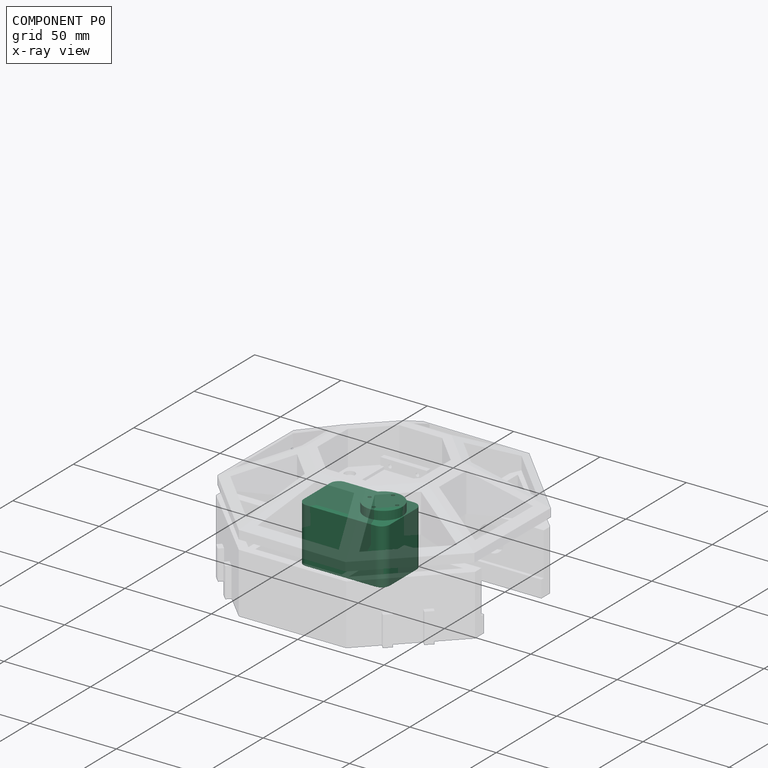
[diagram: component P0 — x-ray view]
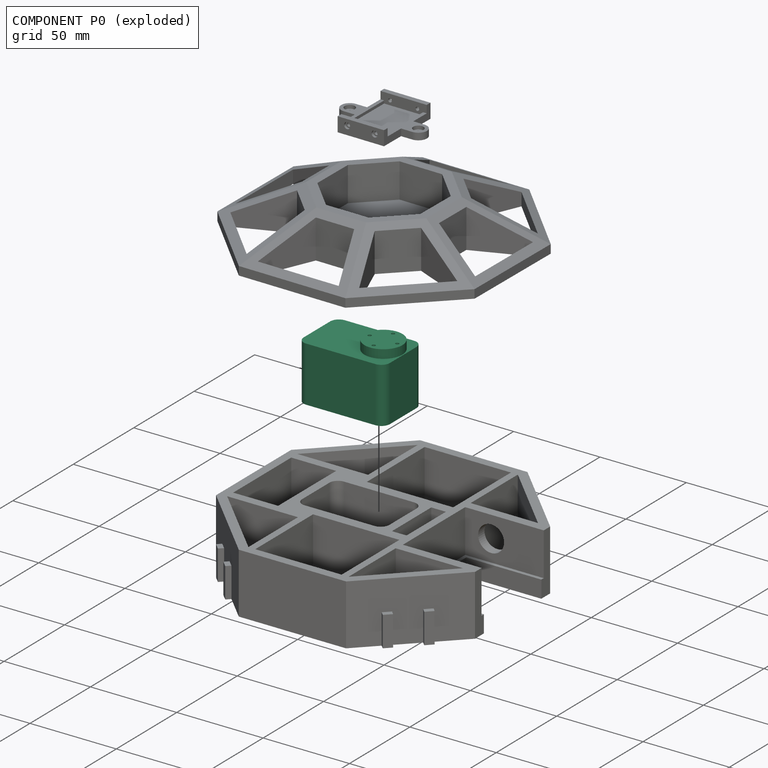
[diagram: component P0 — exploded]
COMPONENT P0 — recipe-attached (CADFS 00713584, mesh-verified: the recipe's output STEP matches this component's geometry to below the mesh-comparison resolution (tessellation chordal tolerance ~0.105 mm)).
Held by: REVOLUTE mate "Revolute 1" to P1; PLANAR mate "Planar 3" to P2; PLANAR mate "Planar 1" to P2; PLANAR mate "Planar 2" to P2.
Construction recipe (FeatureScript — the CAD program that rebuilds this solid; sketch coordinates are in the units given by the * unit suffixes, e.g. mm):

FeatureScript 1511;
import(path : "onshape/std/geometry.fs", version : "1511.0");
import(path : "onshape/std/common.fs", version : "1511.0");
const mm = millimeter;
const VERTEX = EntityType.VERTEX;
const EDGE = EntityType.EDGE;
const FACE = EntityType.FACE;
const BODY = EntityType.BODY;
function v(x, y){return vector(x, y);}
function OD(order){return orderDisambiguation(order);}
function OSD(set){return originalSetDisambiguation(set);}
function TD(topology){return topologyDisambiguation(topology);}
function TDD(query){return trueDependencyDisambiguation(query);}
function sQuery(a, b, c) {return sketchEntityQuery(a, b, c);}

annotation { "Feature Type Name" : "Feature", "Feature Type Description" : "" }
export const myFeature = defineFeature(function(context is Context, id is Id, definition is map)
    precondition{}
    {
        {
            var Q0;
            Q0=qCreatedBy(makeId("Top.planeOp"),FACE);
            var sketch = newSketch(context, id + "F0", { "sketchPlane" : qUnion([Q0])});
            skLineSegment(sketch, "E0.bottom", {"start": v(25, -16) * mm, "end": v(-25, -16) * mm});
            skLineSegment(sketch, "E0.top", {"start": v(25, 16) * mm, "end": v(-25, 16) * mm});
            skLineSegment(sketch, "E0.left", {"start": v(25, -16) * mm, "end": v(25, 16) * mm});
            skLineSegment(sketch, "E0.right", {"start": v(-25, -16) * mm, "end": v(-25, 16) * mm});
            skPoint(sketch, "E0.middle", {"position": v(0, 0) * mm});
            skSolve(sketch);
        }
        {
            var Q0;
            Q0=makeQuery(id+"F0.imprint","IMPRINT",FACE,{"disambiguationData":[TD([[makeQuery(id+"F0.imprint","IMPRINT",EDGE,{"derivedFrom":sQuery(id+"F0.wireOp",EDGE,"E0.bottom")}),-1.0]])]});
            extrude(context, id + "F1", {"entities" : qUnion([Q0]), "depth" : 32 * mm});
        }
        {
            var Q0;
            Q0=makeQuery(id+"F1.opExtrude","SWEPT_EDGE",EDGE,{"disambiguationData":[OSD([sQuery(id+"F0.wireOp",EDGE,"E0.bottom"),sQuery(id+"F0.wireOp",EDGE,"E0.right")])]});
            var Q1;
            Q1=makeQuery(id+"F1.opExtrude","SWEPT_EDGE",EDGE,{"disambiguationData":[OSD([sQuery(id+"F0.wireOp",EDGE,"E0.top"),sQuery(id+"F0.wireOp",EDGE,"E0.right")])]});
            var Q2;
            Q2=makeQuery(id+"F1.opExtrude","SWEPT_EDGE",EDGE,{"disambiguationData":[OSD([sQuery(id+"F0.wireOp",EDGE,"E0.bottom"),sQuery(id+"F0.wireOp",EDGE,"E0.left")])]});
            var Q3;
            Q3=makeQuery(id+"F1.opExtrude","SWEPT_EDGE",EDGE,{"disambiguationData":[OSD([sQuery(id+"F0.wireOp",EDGE,"E0.top"),sQuery(id+"F0.wireOp",EDGE,"E0.left")])]});
            fillet(context, id + "F2", {"entities" : qUnion([Q0, Q1, Q2, Q3]), "radius" : 5 * mm, "tangentPropagation" : true, "allowEdgeOverflow" : false});
        }
        {
            var Q0;
            Q0=makeQuery(id+"F1.opExtrude","CAP_FACE",FACE,{"disambiguationData":[OSD([sQuery(id+"F0.wireOp",EDGE,"E0.bottom"),sQuery(id+"F0.wireOp",EDGE,"E0.top"),sQuery(id+"F0.wireOp",EDGE,"E0.left"),sQuery(id+"F0.wireOp",EDGE,"E0.right")])],"isStart":false});
            var sketch = newSketch(context, id + "F3", { "sketchPlane" : qUnion([Q0])});
            skLineSegment(sketch, "E1", {"start": v(25, 0) * mm, "end": v(13.5, 0) * mm, "construction": true});
            skPoint(sketch, "E1.endSnap0", {"position": v(25, 0) * mm});
            skCircle(sketch, "E2", {"center": v(13.5, 0) * mm, "radius": 11 * mm});
            skSolve(sketch);
        }
        {
            var Q0;
            Q0=makeQuery(id+"F3.imprint","IMPRINT",FACE,{"disambiguationData":[TD([[makeQuery(id+"F3.imprint","IMPRINT",EDGE,{"derivedFrom":sQuery(id+"F3.wireOp",EDGE,"E2")}),1.0]])]});
            extrude(context, id + "F4", {"entities" : qUnion([Q0]), "operationType" : NewBodyOperationType.ADD, "depth" : 5 * mm});
        }
        {
            var Q0;
            Q0=makeQuery(id+"F4.opExtrude","CAP_FACE",FACE,{"disambiguationData":[OSD([sQuery(id+"F3.wireOp",EDGE,"E2")])],"isStart":false});
            var sketch = newSketch(context, id + "F5", { "sketchPlane" : qUnion([Q0])});
            skCircle(sketch, "E3", {"center": v(13.5, 0) * mm, "radius": 8 * mm, "construction": true});
            skCircle(sketch, "E4", {"center": v(21.5, 0) * mm, "radius": 1 * mm});
            skCircle(sketch, "E5", {"center": v(13.5, 8) * mm, "radius": 1 * mm});
            skCircle(sketch, "E6", {"center": v(5.5, 0) * mm, "radius": 1 * mm});
            skCircle(sketch, "E7", {"center": v(13.5, -8) * mm, "radius": 1 * mm});
            skSolve(sketch);
        }
        {
            var Q0;
            Q0=qSketchRegion(id+"F5",true);
            extrude(context, id + "F6", {"entities" : qUnion([Q0]), "operationType" : NewBodyOperationType.REMOVE, "oppositeDirection" : true, "depth" : 5 * mm});
        }
    });
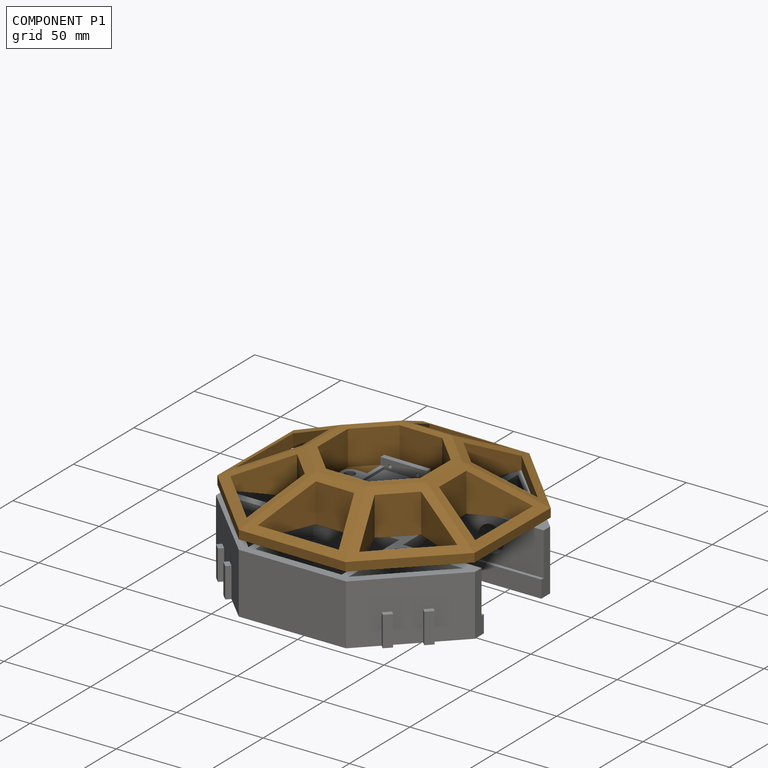
[diagram: component P1 — assembled]
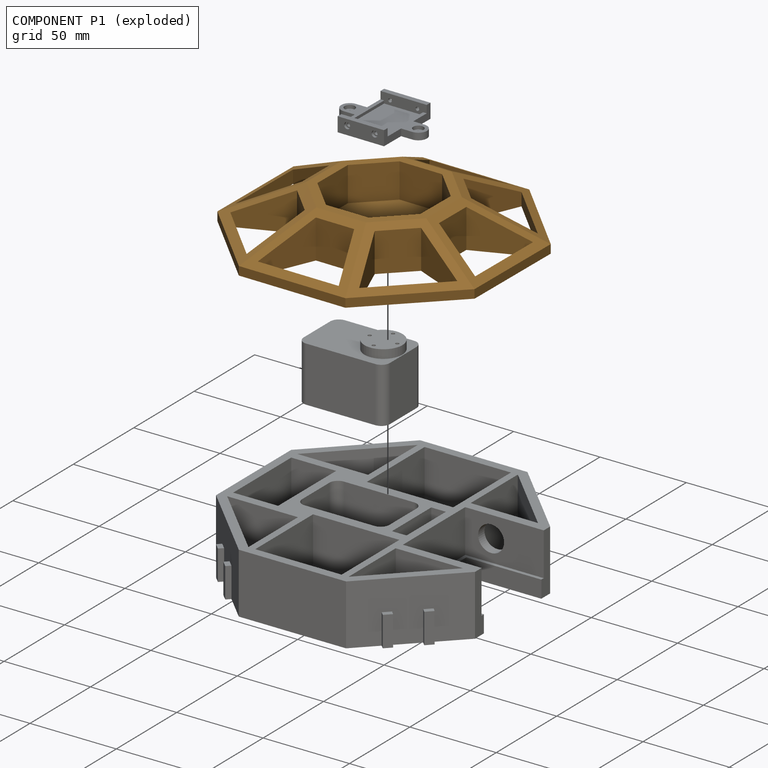
[diagram: component P1 — exploded]
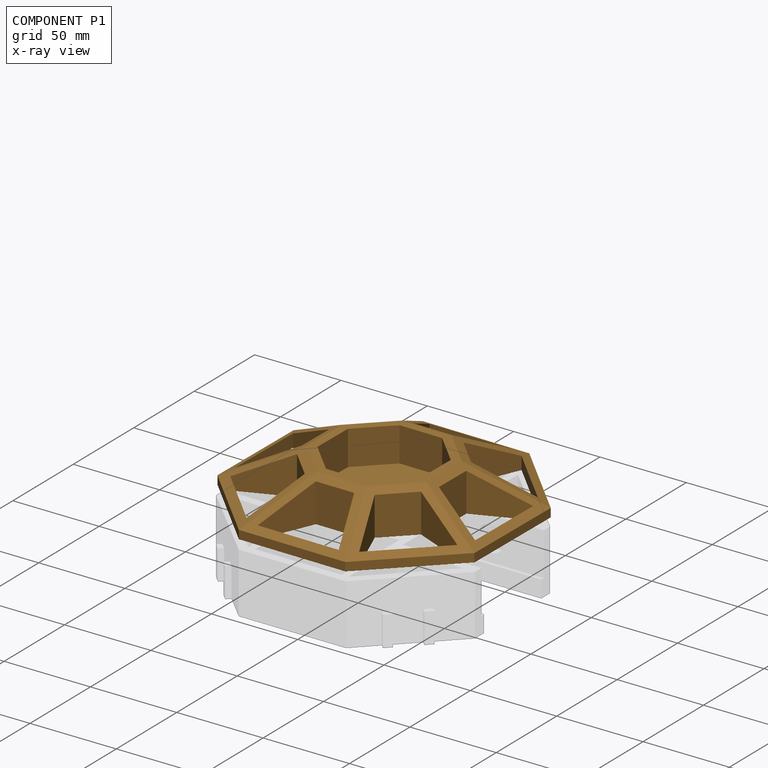
[diagram: component P1 — x-ray view]
COMPONENT P1 — geometry summary (no construction recipe available for this part):
  bounding box: 150.0 x 150.0 x 25.0 mm
  B-rep topology: 1 solid, 74 faces, 386 edges
  volume: 124466 mm^3 (22% of its bounding box)
Held by: REVOLUTE mate "Revolute 1" to P0; CYLINDRICAL mate "Cylindrical 1" to P3; CYLINDRICAL mate "Cylindrical 2" to P3.
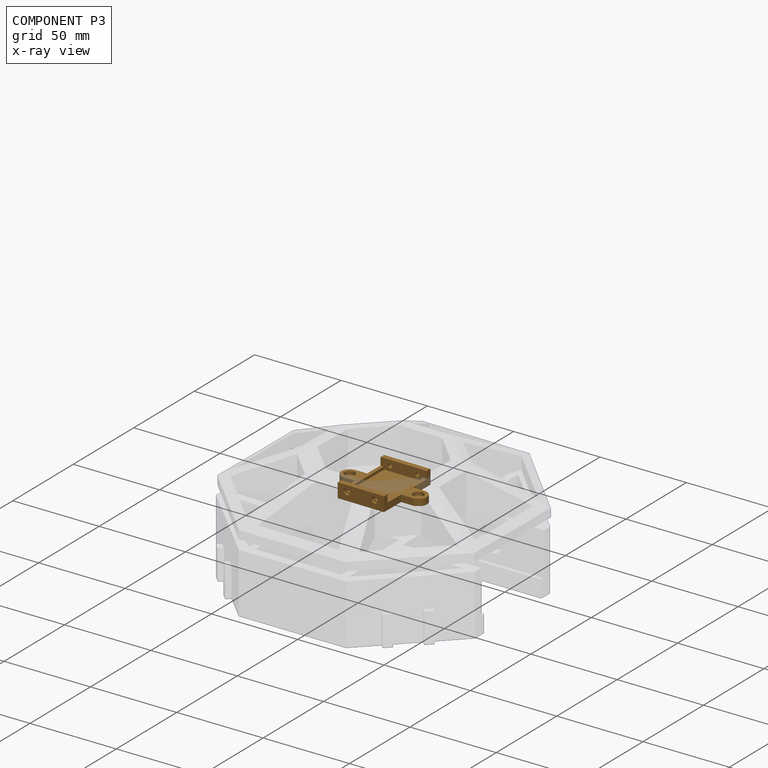
[diagram: component P3 — x-ray view]
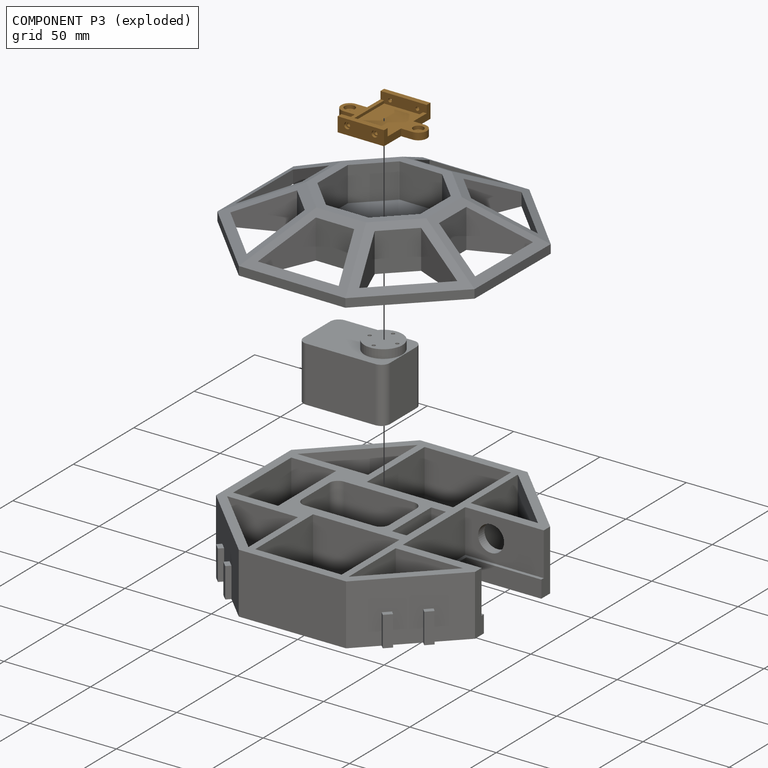
[diagram: component P3 — exploded]
COMPONENT P3 — geometry summary (no construction recipe available for this part):
  bounding box: 50.0 x 37.9 x 8.4 mm
  B-rep topology: 1 solid, 40 faces, 196 edges
  volume: 4263 mm^3 (27% of its bounding box)
  symmetry: 2-fold rotationally symmetric about the z axis; mirror-symmetric across its x mid-plane, y mid-plane
Held by: CYLINDRICAL mate "Cylindrical 1" to P1; CYLINDRICAL mate "Cylindrical 2" to P1.
PROVENANCE & LICENSES
Assembly (occurrences, transforms, mates, per-part STEP geometry): AutoMate dataset, Zenodo record 7776208, CC0.
Construction recipes: CADFS (HuggingFace VladPyatov/CADFS, CC-BY-4.0, layered over the ABC dataset), FeatureScript reconstruction programs keyed by ABC model id.
Join: ABC meta listings map ABC model id -> Onshape documentId; within a shared document, parts are matched by geometric signature (bounding-box dims + volume at 0.1% relative tolerance, exact B-rep face/solid counts).
Verification: 2 of this assembly's 4 components carry a recipe attachment, and every attachment is mesh-verified: the CADFS STEP and the AutoMate member STEP were compared as meshes in their shared local frame (symmetric sampled-point-to-mesh distance); worst across the 2 attachments: below the mesh-comparison resolution (tessellation chordal tolerance ~0.323 mm) on a 215 mm part.
Renders: orthographic iso camera (az 35 / el 25); the floor grid conveys scale (grid pitch printed in each image; no ruler). In the exploded view each component is displaced by its stored offset vector: the offsets alone carry the explosion direction (mate normal/axis signs are not orientation cues and do not encode it), and separation distances are assigned per mate-chain, not proportionally to assembly-order depth.
